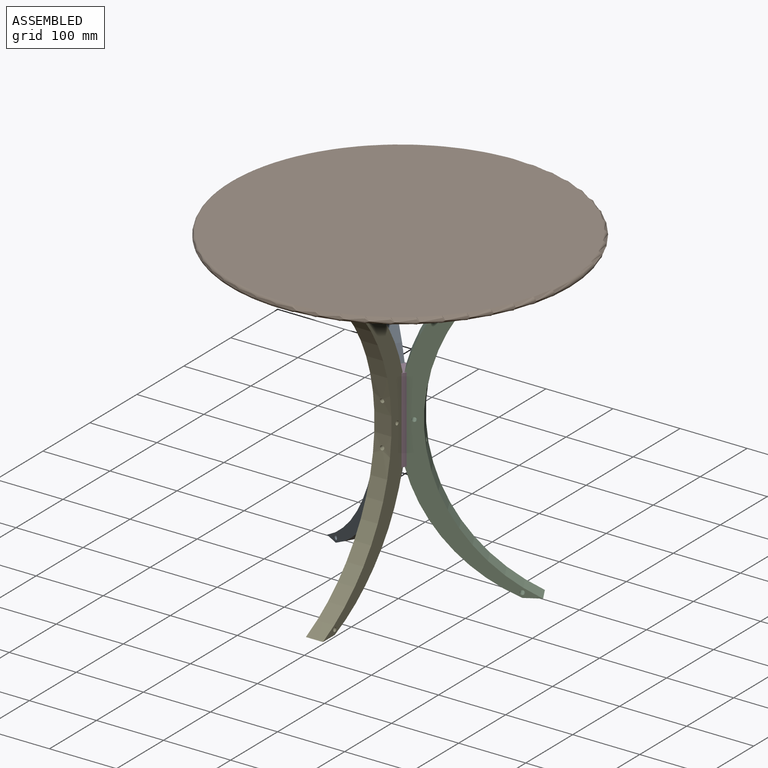
[diagram: assembled view]
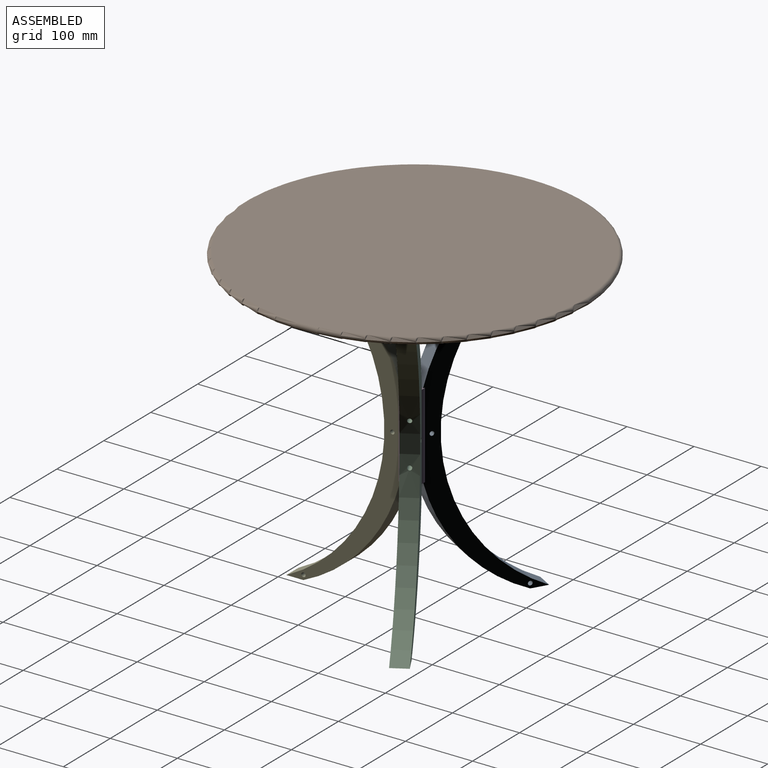
[diagram: assembled view, second angle]
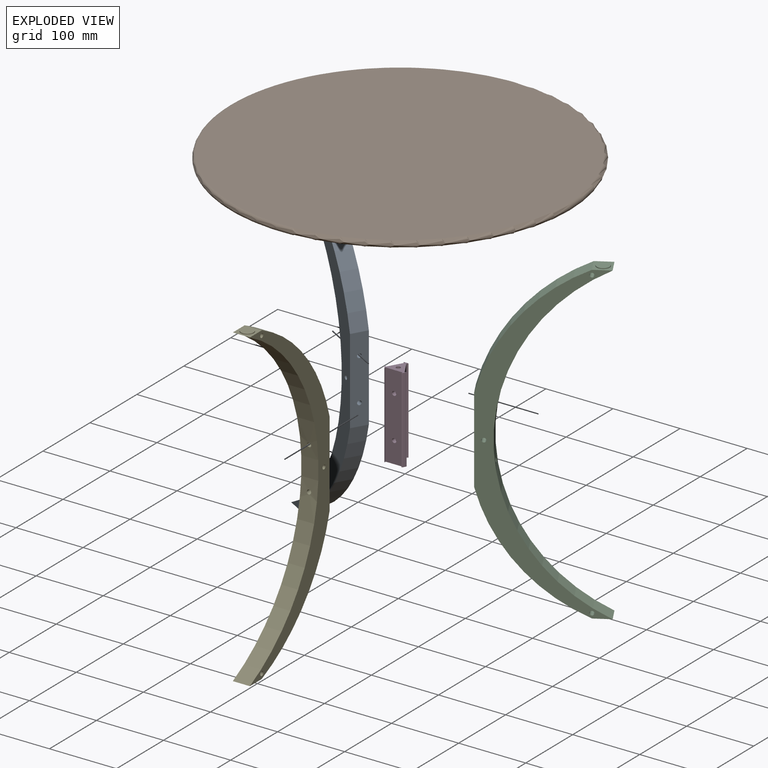
[diagram: exploded view]
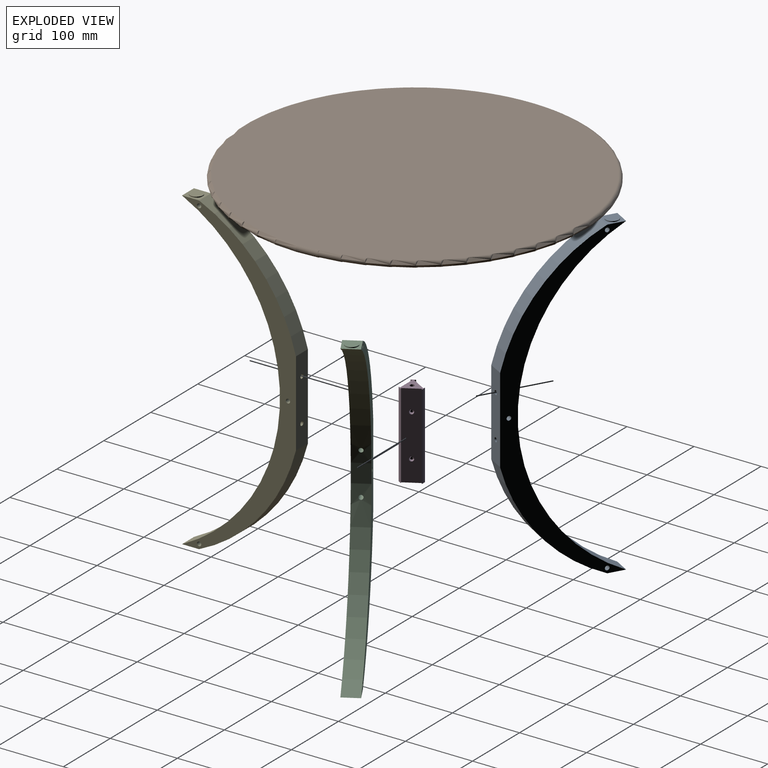
[diagram: exploded view, second angle]
ASSEMBLY  parts=5 mates=4
PART A: 15 faces, bbox 169.8x25.4x471.2 mm
  f0: cylinder r=262.01mm len=469.9mm, axis (0,1,0), area 14739.9mm2, adj f3,f4,f6,f7,f11,f12
  f1: plane 127x25.4mm, normal (1,0,0), area 3162.5mm2, adj f2,f5,f6,f7,f11,f12
  f2: cylinder r=257.31mm len=171.45mm, axis (0,1,0), area 5891.8mm2, adj f1,f3,f6,f7
  f3: plane 25.4x25.4mm, normal (0,0,1), area 360.1mm2, adj f0,f2,f6,f7,f13
  f4: plane 25.4x25.4mm, normal (0,0,-1), area 645.2mm2, adj f0,f5,f6,f7
  f5: cylinder r=257.31mm len=171.45mm, axis (0,1,0), area 5891.8mm2, adj f1,f4,f6,f7
  f6: plane 469.9x169.84mm, normal (0,-1,0), area 13596.1mm2, adj f0,f1,f2,f3,f4,f5,f8,f9
  f7: plane 469.9x169.84mm, normal (0,1,0), area 13596.1mm2, adj f0,f1,f2,f3,f4,f5,f8,f9
  f8: cylinder r=3.17mm len=25.4mm, axis (0,1,0), area 506.7mm2, adj f6,f7
  f9: cylinder r=3.17mm len=25.4mm, axis (0,1,0), area 506.7mm2, adj f6,f7
  f10: cylinder r=3.17mm len=25.4mm, axis (0,1,0), area 506.7mm2, adj f6,f7
  f11: cylinder r=3.17mm len=26.13mm, axis (1,0,0), area 513.3mm2, adj f0,f1
  f12: cylinder r=3.17mm len=26.13mm, axis (1,0,0), area 513.3mm2, adj f0,f1
  f13: cylinder r=9.53mm len=19.05mm, axis (0,0,-1), area 76mm2, adj f3,f14
  f14: plane 19.05x19.05mm, normal (0,0,1), area 285mm2, adj f13
PART B: 11 faces, bbox 549.9x549.9x9.5 mm
  f0: cylinder r=254mm len=508mm, axis (0,0,-1), area 8.1mm2, adj f9,f10
  f1: plane 498.48x498.48mm, normal (0,0,1), area 195157.6mm2, adj f10
  f2: plane 498.48x498.48mm, normal (0,0,-1), area 195142.4mm2, adj f4,f6,f8,f9
  f3: cone r=0mm half-angle=59deg, axis (0,0,-1), area 5.9mm2, adj f4
  f4: cylinder r=1.27mm len=2.54mm, axis (0,0,-1), area 20.3mm2, adj f2,f3
  f5: cone r=0mm half-angle=59deg, axis (0,0,-1), area 5.9mm2, adj f6
  f6: cylinder r=1.27mm len=2.54mm, axis (0,0,-1), area 20.3mm2, adj f2,f5
  f7: cone r=0mm half-angle=59deg, axis (0,0,-1), area 5.9mm2, adj f8
  f8: cylinder r=1.27mm len=2.54mm, axis (0,0,-1), area 20.3mm2, adj f2,f7
  f9: torus R=249.24mm, axis (0,0,1), area 11851.4mm2, adj f0,f2
  f10: torus R=249.24mm, axis (0,0,1), area 11851.4mm2, adj f0,f1
PART C: same geometry as A
PART D: 33 faces, bbox 32.3x28.4x127 mm
  f0: cone r=0mm half-angle=59deg, axis (0.87,0.5,0), area 2.9mm2, adj f2,f32
  f1: cone r=0mm half-angle=59deg, axis (0.87,0.5,0), area 2.9mm2, adj f2,f32
  f2: cylinder r=3.17mm len=8.67mm, axis (0.87,0.5,0), area 122.5mm2, adj f0,f1,f27,f32
  f3: cone r=0mm half-angle=59deg, axis (0.87,0.5,0), area 2.9mm2, adj f5,f32
  f4: cone r=0mm half-angle=59deg, axis (0.87,0.5,0), area 2.9mm2, adj f5,f32
  f5: cylinder r=3.17mm len=8.67mm, axis (0.87,0.5,0), area 122.5mm2, adj f3,f4,f27,f32
  f6: cone r=0mm half-angle=59deg, axis (0,-1,0), area 2.9mm2, adj f8,f32
  f7: cone r=0mm half-angle=59deg, axis (0,-1,0), area 2.9mm2, adj f8,f32
  f8: cylinder r=3.17mm len=6.35mm, axis (0,-1,0), area 123mm2, adj f6,f7,f23,f32
  f9: cone r=0mm half-angle=59deg, axis (0,-1,0), area 2.9mm2, adj f11,f32
  f10: cone r=0mm half-angle=59deg, axis (0,-1,0), area 2.9mm2, adj f11,f32
  f11: cylinder r=3.17mm len=6.35mm, axis (0,-1,0), area 123mm2, adj f9,f10,f23,f32
  f12: cone r=0mm half-angle=59deg, axis (-0.87,0.5,0), area 2.9mm2, adj f14,f32
  f13: cone r=0mm half-angle=59deg, axis (-0.87,0.5,0), area 2.9mm2, adj f14,f32
  f14: cylinder r=3.17mm len=8.67mm, axis (-0.87,0.5,0), area 122.5mm2, adj f12,f13,f19,f32
  f15: cone r=0mm half-angle=59deg, axis (-0.87,0.5,0), area 2.9mm2, adj f17,f32
  f16: cone r=0mm half-angle=59deg, axis (-0.87,0.5,0), area 2.9mm2, adj f17,f32
  f17: cylinder r=3.17mm len=8.67mm, axis (-0.87,0.5,0), area 122.5mm2, adj f15,f16,f19,f32
  f18: plane 127x2.2mm, normal (-0.5,-0.87,0), area 322.6mm2, adj f19,f29,f30,f31
  f19: plane 127x22mm, normal (-0.87,0.5,0), area 3162.5mm2, adj f14,f17,f18,f20,f30,f31
  f20: plane 127x2.2mm, normal (0.5,0.87,0), area 322.6mm2, adj f19,f21,f30,f31
  f21: cylinder r=17.03mm len=127mm, axis (0,0,-1), area 887.5mm2, adj f20,f22,f30,f31
  f22: plane 127x2.54mm, normal (1,0,0), area 322.6mm2, adj f21,f23,f30,f31
  f23: plane 127x25.4mm, normal (0,-1,0), area 3162.5mm2, adj f8,f11,f22,f24,f30,f31
  f24: plane 127x2.54mm, normal (-1,0,0), area 322.6mm2, adj f23,f25,f30,f31
  f25: cylinder r=17.03mm len=127mm, axis (0,0,-1), area 887.5mm2, adj f24,f26,f30,f31
  f26: plane 127x2.2mm, normal (-0.5,0.87,0), area 322.6mm2, adj f25,f27,f30,f31
  f27: plane 127x22mm, normal (0.87,0.5,0), area 3162.5mm2, adj f2,f5,f26,f28,f30,f31
  f28: plane 127x2.2mm, normal (0.5,-0.87,0), area 322.6mm2, adj f27,f29,f30,f31
  f29: cylinder r=17.03mm len=127mm, axis (0,0,-1), area 887.5mm2, adj f18,f28,f30,f31
  f30: plane 32.34x28.36mm, normal (0,0,1), area 385.3mm2, adj f18,f19,f20,f21,f22,f23,f24,f25
  f31: plane 32.34x28.36mm, normal (0,0,-1), area 385.3mm2, adj f18,f19,f20,f21,f22,f23,f24,f25
  f32: cylinder r=3.17mm len=127mm, axis (0,0,-1), area 2356.7mm2, adj f0,f1,f2,f3,f4,f5,f6,f7
PART E: same geometry as A
PLACE A rot(axis=(0,0,-1),30deg) t=(-71.37,55.87,63.5)mm
PLACE B t=(0,3.97,299.72)mm
PLACE C rot(axis=(0,0,-1),150deg) t=(84.07,33.87,63.5)mm
PLACE D at identity
PLACE E rot(axis=(0,0,1),90deg) t=(-12.7,-89.74,63.5)mm
MATE planar A.f12 <-> D.f15  axis (0.87,-0.5,0) through (-7.62,4.4,95.25)mm
MATE planar B.f7 <-> E.f13  axis (0,0,-1) through (0,-165.94,299.72)mm
MATE planar E.f12 <-> D.f6  axis (0,1,0) through (0,-8.8,95.25)mm
MATE planar C.f12 <-> D.f0  axis (-0.87,-0.5,0) through (7.62,4.4,95.25)mm
